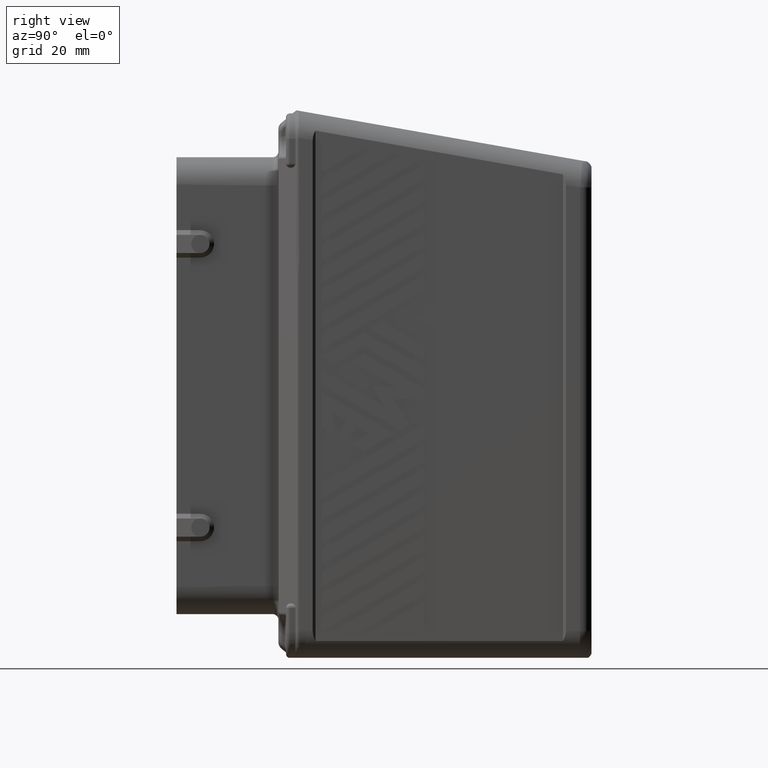
[diagram: clean part render]
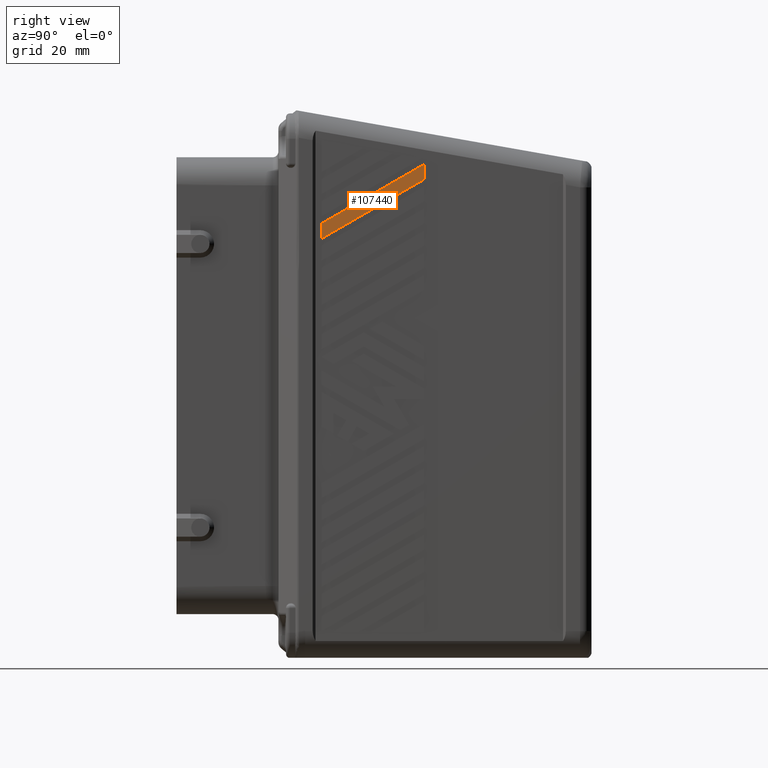
[diagram: same view with one face highlighted and labeled with its STEP entity id]
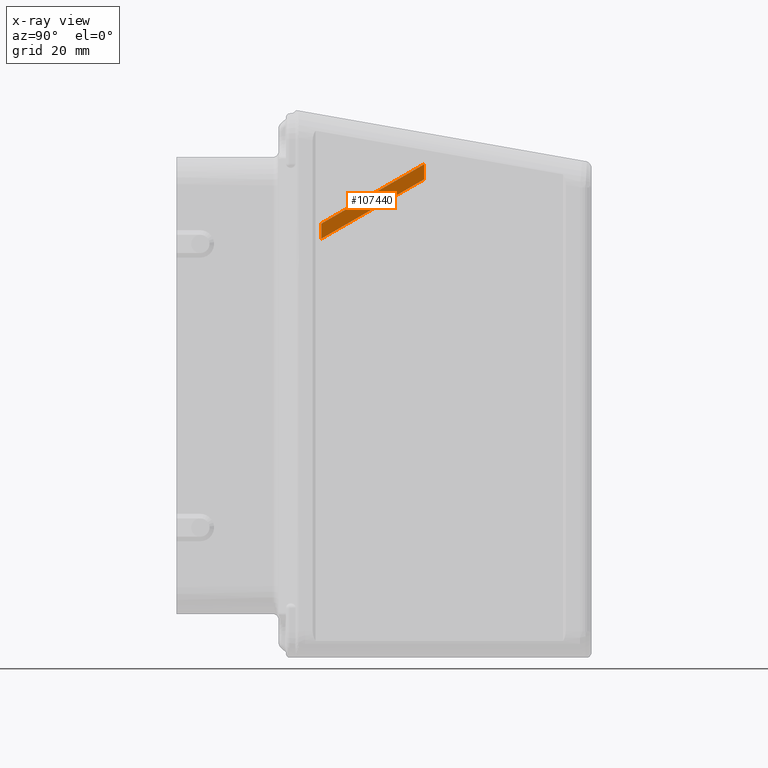
[diagram: x-ray of the same camera — body ghosted, the highlighted face saturated]
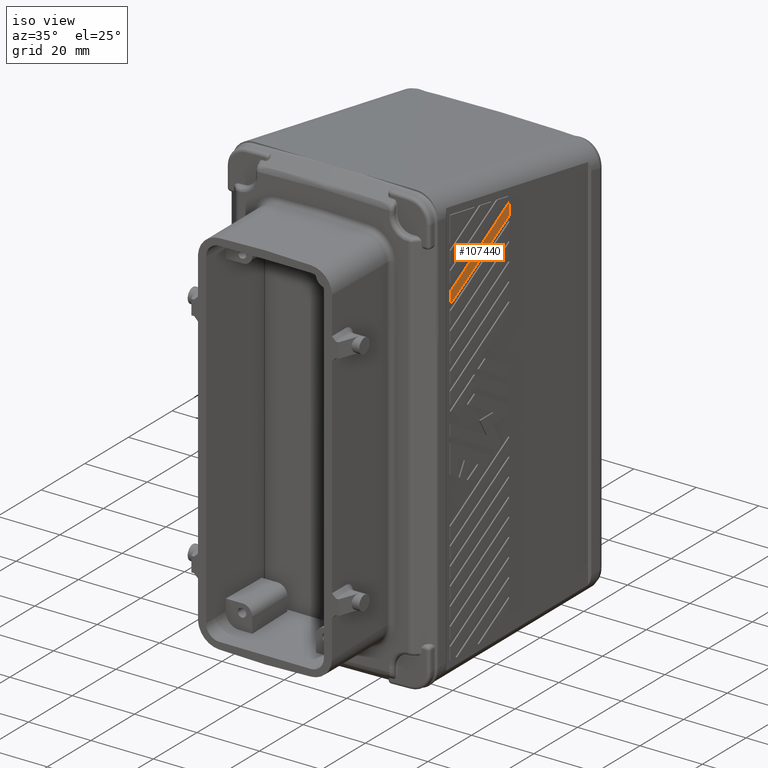
[diagram: same view with one face highlighted and labeled with its STEP entity id]
A machine part, right view. The second image highlights one B-rep face of the part: STEP entity #107440.
The next image is the same camera in x-ray: the body ghosted, the highlighted face saturated — about 0% of this face is hidden behind the body in this view.
A second angle (iso view) of the same face is appended — the face is thin or edge-on in the first view.
In plain terms, the highlighted planar face has unit normal (1, -0, -0).
Its self-contained STEP definition (entity closure, byte-faithful):
#81530=CARTESIAN_POINT('',(79.5281038823694,84.7732326809808,
54.1653997470217));
#81540=VERTEX_POINT('',#81530);
#81710=CARTESIAN_POINT('',(79.5281038823693,84.7732326809808,
50.2163239057646));
#81720=VERTEX_POINT('',#81710);
#81750=CARTESIAN_POINT('',(79.5281038823719,84.7732326809811,
111.872140964394));
#81760=DIRECTION('',(4.20886732018365E-14,4.49714925095434E-15,1.));
#81770=VECTOR('',#81760,1.);
#81780=LINE('',#81750,#81770);
#81790=EDGE_CURVE('',#81720,#81540,#81780,.T.);
#82570=CARTESIAN_POINT('',(79.5281038823686,57.7732326809805,
34.6278666376444));
#82580=VERTEX_POINT('',#82570);
#82750=CARTESIAN_POINT('',(79.5281038823688,57.7732326809805,
38.5769424789015));
#82760=VERTEX_POINT('',#82750);
#82790=CARTESIAN_POINT('',(79.5281038823672,57.7732326809805,1.97));
#82800=DIRECTION('',(-4.20886732018365E-14,2.14213244519121E-15,-1.));
#82810=VECTOR('',#82800,1.);
#82820=LINE('',#82790,#82810);
#82830=EDGE_CURVE('',#82760,#82580,#82820,.T.);
#105530=CARTESIAN_POINT('',(79.5281038823676,16.4210823381756,
10.753191505656));
#105540=DIRECTION('',(2.10683736344981E-14,0.866025403784437,
0.500000000000003));
#105550=VECTOR('',#105540,1.);
#105560=LINE('',#105530,#105550);
#105570=EDGE_CURVE('',#82580,#81720,#105560,.T.);
#107280=CARTESIAN_POINT('',(79.5281038823673,68.1232326809805,
2.54895284159714));
#107290=DIRECTION('',(1.,-2.77555756156163E-17,-4.20886732018365E-14));
#107300=DIRECTION('',(-4.20886732018365E-14,1.17961196366423E-16,-1.));
#107310=AXIS2_PLACEMENT_3D('',#107280,#107290,#107300);
#107320=PLANE('',#107310);
#107330=ORIENTED_EDGE('',*,*,#82830,.T.);
#107340=CARTESIAN_POINT('',(79.5281038823678,16.4210823381756,
14.702267346913));
#107350=DIRECTION('',(-2.10683736344981E-14,-0.866025403784437,
-0.500000000000003));
#107360=VECTOR('',#107350,1.);
#107370=LINE('',#107340,#107360);
#107380=EDGE_CURVE('',#81540,#82760,#107370,.T.);
#107390=ORIENTED_EDGE('',*,*,#107380,.T.);
#107400=ORIENTED_EDGE('',*,*,#81790,.T.);
#107410=ORIENTED_EDGE('',*,*,#105570,.T.);
#107420=EDGE_LOOP('',(#107410,#107400,#107390,#107330));
#107430=FACE_OUTER_BOUND('',#107420,.T.);
#107440=ADVANCED_FACE('',(#107430),#107320,.T.);